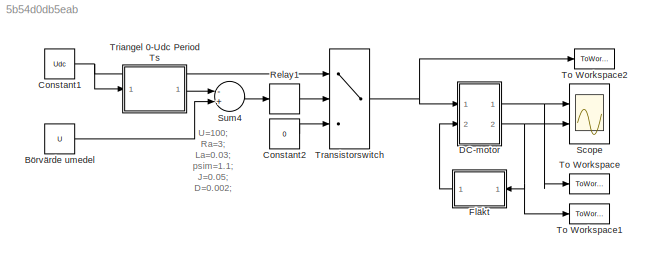
MODEL slx_5b54d0db5eab
KIND model
CONFIG AbsTol = auto
CONFIG EnableMultiTasking = on
CONFIG FixedStep = auto
CONFIG MaxStep = auto
CONFIG MinStep = auto
CONFIG RelTol = 1e-3
CONFIG SampleTimeConstraint = Unconstrained
CONFIG Solver = ode45
CONFIG SolverName = ode45
CONFIG StartTime = 0.0
CONFIG StopTime = 1
BLOCK [Constant] Börvärde umedel
  Value = U
BLOCK [Constant] Constant1
  Value = Udc
BLOCK [Constant] Constant2
  Value = 0
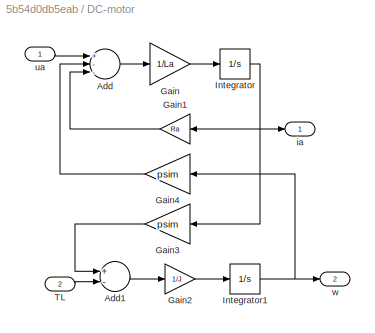
BLOCK [SubSystem] DC-motor
  Ports = [2, 2]
  RequestExecContextInheritance = off
  Variant = off
BLOCK [Sum] DC-motor/Add
  InputSameDT = off
  Inputs = +--
  OutDataTypeStr = Inherit: Inherit via internal rule
  Ports = [3, 1]
  SaturateOnIntegerOverflow = off
BLOCK [Sum] DC-motor/Add1
  InputSameDT = off
  Inputs = +-
  OutDataTypeStr = Inherit: Inherit via internal rule
  Ports = [2, 1]
  SaturateOnIntegerOverflow = off
BLOCK [Gain] DC-motor/Gain
  Gain = 1/La
  OutDataTypeStr = Inherit: Inherit via internal rule
  ParamDataTypeStr = Inherit: Inherit via internal rule
  SaturateOnIntegerOverflow = off
BLOCK [Gain] DC-motor/Gain1
  Gain = Ra
  OutDataTypeStr = Inherit: Inherit via internal rule
  ParamDataTypeStr = Inherit: Inherit via internal rule
  SaturateOnIntegerOverflow = off
BLOCK [Gain] DC-motor/Gain2
  Gain = 1/J
  OutDataTypeStr = Inherit: Inherit via internal rule
  ParamDataTypeStr = Inherit: Inherit via internal rule
  SaturateOnIntegerOverflow = off
BLOCK [Gain] DC-motor/Gain3
  Gain = psim
  OutDataTypeStr = Inherit: Inherit via internal rule
  ParamDataTypeStr = Inherit: Inherit via internal rule
  SaturateOnIntegerOverflow = off
BLOCK [Gain] DC-motor/Gain4
  Gain = psim
  OutDataTypeStr = Inherit: Inherit via internal rule
  ParamDataTypeStr = Inherit: Inherit via internal rule
  SaturateOnIntegerOverflow = off
BLOCK [Integrator] DC-motor/Integrator
  Ports = [1, 1]
BLOCK [Integrator] DC-motor/Integrator1
  Ports = [1, 1]
BLOCK [Inport] DC-motor/TL
  IconDisplay = Port number
  Port = 2
BLOCK [Outport] DC-motor/ia
  IconDisplay = Port number
BLOCK [Inport] DC-motor/ua
  IconDisplay = Port number
BLOCK [Outport] DC-motor/w
  IconDisplay = Port number
  Port = 2
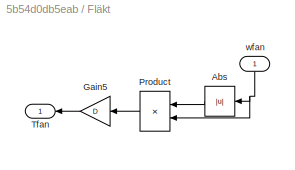
BLOCK [SubSystem] Fläkt
  Ports = [1, 1]
  RequestExecContextInheritance = off
  Variant = off
BLOCK [Abs] Fläkt/Abs
  SaturateOnIntegerOverflow = off
BLOCK [Gain] Fläkt/Gain5
  Gain = D
  OutDataTypeStr = Inherit: Inherit via internal rule
  ParamDataTypeStr = Inherit: Inherit via internal rule
  SaturateOnIntegerOverflow = off
BLOCK [Product] Fläkt/Product
  InputSameDT = off
  OutDataTypeStr = Inherit: Inherit via internal rule
  Ports = [2, 1]
  SaturateOnIntegerOverflow = off
BLOCK [Outport] Fläkt/Tfan
  IconDisplay = Port number
BLOCK [Inport] Fläkt/wfan
  IconDisplay = Port number
BLOCK [Relay] Relay1
  OffOutputValue = -1
BLOCK [Scope] Scope
  NumInputPorts = 2
  Ports = [2]
  ScopeSpecificationString = Simulink.scopes.TimeScopeBlockCfg('CurrentConfiguration', extmgr.ConfigurationSet(extmgr.Configuration('Core','General UI',true),extmgr.Configuration('Core','Source UI',true),extmgr.Configuration('Sources','WiredSimulink',true,'DataLogging',true,'DataLoggingVariableName','mpwm','DataLoggingSaveFormat','Structure','DataLoggingDecimation','1','DataLoggingDecimateData',true),extmgr.Configuration('Vis...<+2398ch>
BLOCK [Sum] Sum4
  Inputs = -+
  Ports = [2, 1]
BLOCK [ToWorkspace] To Workspace
  MaxDataPoints = inf
  Ports = [1]
  SampleTime = -1
  VariableName = iapwm
BLOCK [ToWorkspace] To Workspace1
  MaxDataPoints = inf
  Ports = [1]
  SampleTime = -1
  VariableName = wpwm
BLOCK [ToWorkspace] To Workspace2
  MaxDataPoints = inf
  Ports = [1]
  SampleTime = -1
  VariableName = uapwm
BLOCK [Switch] Transistorswitch
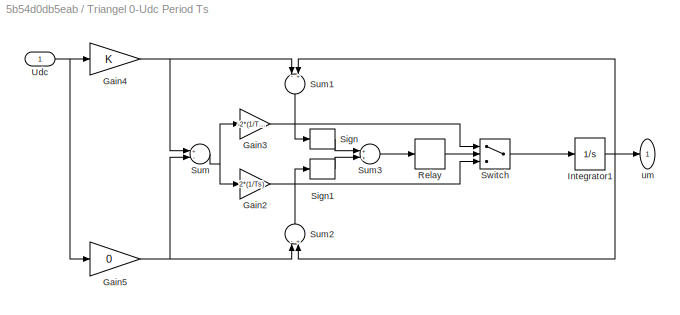
BLOCK [SubSystem] Triangel 0-Udc Period Ts
  Ports = [1, 1]
  RequestExecContextInheritance = off
  Variant = off
BLOCK [Gain] Triangel 0-Udc Period Ts/Gain2
  Gain = 2*(1/Ts)
BLOCK [Gain] Triangel 0-Udc Period Ts/Gain3
  Gain = -2*(1/Ts)
BLOCK [Gain] Triangel 0-Udc Period Ts/Gain4
BLOCK [Gain] Triangel 0-Udc Period Ts/Gain5
  Gain = 0
BLOCK [Integrator] Triangel 0-Udc Period Ts/Integrator1
  Ports = [1, 1]
BLOCK [Relay] Triangel 0-Udc Period Ts/Relay
  OffOutputValue = -1
  OffSwitchValue = -1
  OnSwitchValue = 1
BLOCK [Signum] Triangel 0-Udc Period Ts/Sign
BLOCK [Signum] Triangel 0-Udc Period Ts/Sign1
BLOCK [Sum] Triangel 0-Udc Period Ts/Sum
  Inputs = +-
  Ports = [2, 1]
BLOCK [Sum] Triangel 0-Udc Period Ts/Sum1
  Inputs = -+
  Ports = [2, 1]
BLOCK [Sum] Triangel 0-Udc Period Ts/Sum2
  Inputs = -+
  Ports = [2, 1]
BLOCK [Sum] Triangel 0-Udc Period Ts/Sum3
  Ports = [2, 1]
BLOCK [Switch] Triangel 0-Udc Period Ts/Switch
BLOCK [Inport] Triangel 0-Udc Period Ts/Udc
  IconDisplay = Port number
BLOCK [Outport] Triangel 0-Udc Period Ts/um
  IconDisplay = Port number
ANNOTATION (root): U=100; Ra=3; La=0.03; psim=1.1; J=0.05; D=0.002; Ts=0.002; Udc=200;
LINE Börvärde umedel:1 -> Sum4:2
NET Constant1:1 -> Transistorswitch:1, Triangel 0-Udc Period Ts:1
LINE Constant2:1 -> Transistorswitch:3
LINE DC-motor/Add1:1 -> DC-motor/Gain2:1
LINE DC-motor/Add:1 -> DC-motor/Gain:1
LINE DC-motor/Gain1:1 -> DC-motor/Add:3
LINE DC-motor/Gain2:1 -> DC-motor/Integrator1:1
LINE DC-motor/Gain3:1 -> DC-motor/Add1:1
LINE DC-motor/Gain4:1 -> DC-motor/Add:2
LINE DC-motor/Gain:1 -> DC-motor/Integrator:1
NET DC-motor/Integrator1:1 -> DC-motor/Gain4:1, DC-motor/w:1
NET DC-motor/Integrator:1 -> DC-motor/Gain1:1, DC-motor/Gain3:1, DC-motor/ia:1
LINE DC-motor/TL:1 -> DC-motor/Add1:2
LINE DC-motor/ua:1 -> DC-motor/Add:1
NET DC-motor:1 -> Scope:1, To Workspace:1
NET DC-motor:2 -> Fläkt:1, Scope:2, To Workspace1:1
LINE Fläkt/Abs:1 -> Fläkt/Product:1
LINE Fläkt/Gain5:1 -> Fläkt/Tfan:1
LINE Fläkt/Product:1 -> Fläkt/Gain5:1
NET Fläkt/wfan:1 -> Fläkt/Abs:1, Fläkt/Product:2
LINE Fläkt:1 -> DC-motor:2
LINE Relay1:1 -> Transistorswitch:2
LINE Sum4:1 -> Relay1:1
NET Transistorswitch:1 -> DC-motor:1, To Workspace2:1
LINE Triangel 0-Udc Period Ts/Gain2:1 -> Triangel 0-Udc Period Ts/Switch:3
LINE Triangel 0-Udc Period Ts/Gain3:1 -> Triangel 0-Udc Period Ts/Switch:1
NET Triangel 0-Udc Period Ts/Gain4:1 -> Triangel 0-Udc Period Ts/Sum1:1, Triangel 0-Udc Period Ts/Sum:1
NET Triangel 0-Udc Period Ts/Gain5:1 -> Triangel 0-Udc Period Ts/Sum2:1, Triangel 0-Udc Period Ts/Sum:2
NET Triangel 0-Udc Period Ts/Integrator1:1 -> Triangel 0-Udc Period Ts/Sum1:2, Triangel 0-Udc Period Ts/Sum2:2, Triangel 0-Udc Period Ts/um:1
LINE Triangel 0-Udc Period Ts/Relay:1 -> Triangel 0-Udc Period Ts/Switch:2
LINE Triangel 0-Udc Period Ts/Sign1:1 -> Triangel 0-Udc Period Ts/Sum3:2
LINE Triangel 0-Udc Period Ts/Sign:1 -> Triangel 0-Udc Period Ts/Sum3:1
LINE Triangel 0-Udc Period Ts/Sum1:1 -> Triangel 0-Udc Period Ts/Sign:1
LINE Triangel 0-Udc Period Ts/Sum2:1 -> Triangel 0-Udc Period Ts/Sign1:1
LINE Triangel 0-Udc Period Ts/Sum3:1 -> Triangel 0-Udc Period Ts/Relay:1
NET Triangel 0-Udc Period Ts/Sum:1 -> Triangel 0-Udc Period Ts/Gain2:1, Triangel 0-Udc Period Ts/Gain3:1
LINE Triangel 0-Udc Period Ts/Switch:1 -> Triangel 0-Udc Period Ts/Integrator1:1
NET Triangel 0-Udc Period Ts/Udc:1 -> Triangel 0-Udc Period Ts/Gain4:1, Triangel 0-Udc Period Ts/Gain5:1
LINE Triangel 0-Udc Period Ts:1 -> Sum4:1
note: NET lines group one-source signal fan-out (src -> all destinations, sorted); 1:1 wires keep LINE
